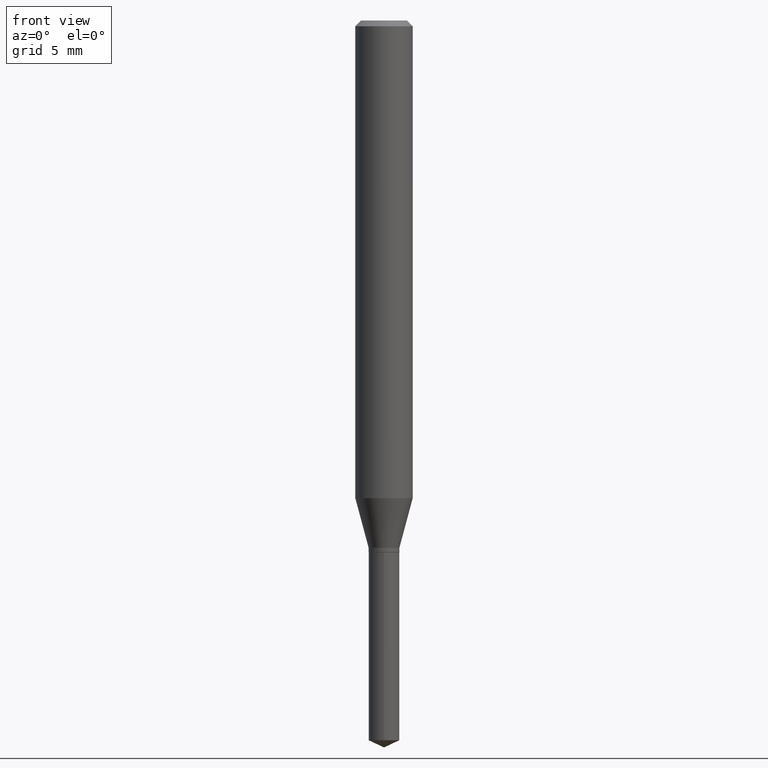
[diagram: clean part render]
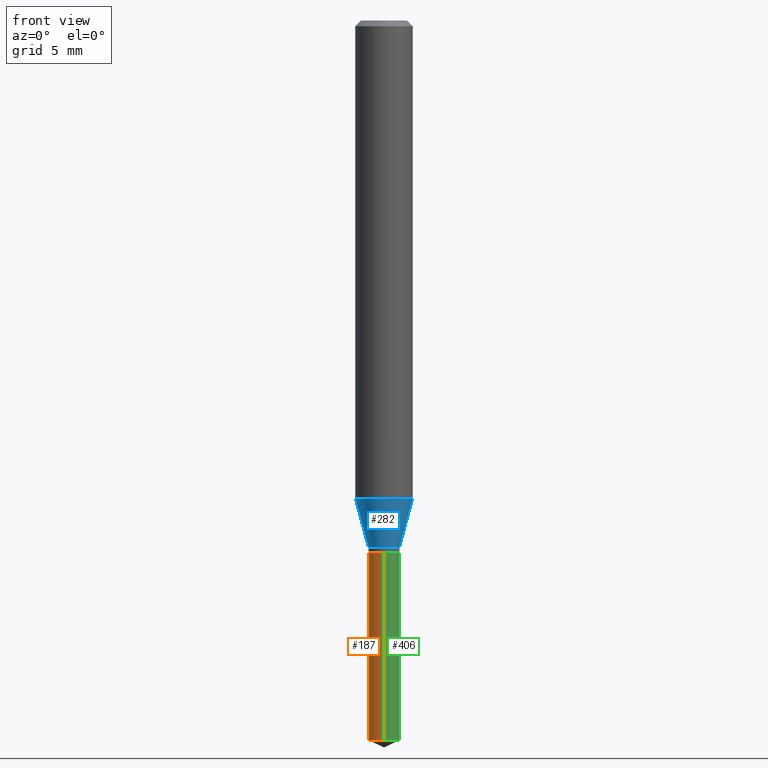
[diagram: same view with three faces highlighted in distinct colors, each labeled with its STEP entity id]
A machine part, front view with three faces highlighted in distinct colors.
Their STEP definitions:

[orange] entity #187 — the highlighted cylindrical surface (edge-blend (fillet) strip) has radius 0.8052 mm, axis along (-0, 0, 1).
#21 = LINE ( 'NONE', #163, #465 ) ;
#52 = DIRECTION ( 'NONE',  ( -6.982962677686265922E-15, -1.000000000000000000, 0.000000000000000000 ) ) ;
#66 = CARTESIAN_POINT ( 'NONE',  ( -2.213599168826184261E-16, -0.03170000000000517543, -1.481318047236486413 ) ) ;
#80 = DIRECTION ( 'NONE',  ( -2.445470214571802116E-29, 3.491479321953280158E-15, 1.000000000000000000 ) ) ;
#85 = CARTESIAN_POINT ( 'NONE',  ( 3.622517621345287760E-29, -5.171993538648362577E-15, -1.481318047236486413 ) ) ;
#120 = DIRECTION ( 'NONE',  ( -2.445470214571802396E-29, 3.491479321953280158E-15, 1.000000000000000000 ) ) ;
#160 = DIRECTION ( 'NONE',  ( -2.445470214571802116E-29, 3.491479321953280158E-15, 1.000000000000000000 ) ) ;
#163 = CARTESIAN_POINT ( 'NONE',  ( -2.213599168826278678E-16, -0.03170000000000382234, -1.094499999999999806 ) ) ;
#174 = DIRECTION ( 'NONE',  ( -6.982962677686265922E-15, -1.000000000000000000, 4.308908507356882401E-15 ) ) ;
#178 = CARTESIAN_POINT ( 'NONE',  ( -2.213599168826278678E-16, -0.03170000000000382234, -1.094499999999999806 ) ) ;
#187 = ADVANCED_FACE ( 'NONE', ( #353 ), #274, .T. ) ;
#188 = CIRCLE ( 'NONE', #277, 0.03169999999999999901 ) ;
#194 = LINE ( 'NONE', #429, #363 ) ;
#195 = EDGE_CURVE ( 'NONE', #400, #372, #264, .T. ) ;
#199 = ORIENTED_EDGE ( 'NONE', *, *, #261, .F. ) ;
#207 = AXIS2_PLACEMENT_3D ( 'NONE', #85, #160, #52 ) ;
#208 = CARTESIAN_POINT ( 'NONE',  ( 2.252420472359879902E-16, 0.03169999999999482954, -1.481318047236486413 ) ) ;
#217 = CARTESIAN_POINT ( 'NONE',  ( 2.676565608369631794E-29, -3.821426325363822773E-15, -1.094499999999999806 ) ) ;
#231 = VERTEX_POINT ( 'NONE', #390 ) ;
#261 = EDGE_CURVE ( 'NONE', #400, #231, #194, .T. ) ;
#264 = CIRCLE ( 'NONE', #207, 0.03169999999999999901 ) ;
#274 = CYLINDRICAL_SURFACE ( 'NONE', #426, 0.03169999999999999901 ) ;
#277 = AXIS2_PLACEMENT_3D ( 'NONE', #217, #442, #174 ) ;
#292 = ORIENTED_EDGE ( 'NONE', *, *, #327, .T. ) ;
#320 = DIRECTION ( 'NONE',  ( -2.445470214571802396E-29, 3.491479321953280158E-15, 1.000000000000000000 ) ) ;
#327 = EDGE_CURVE ( 'NONE', #372, #443, #21, .T. ) ;
#353 = FACE_OUTER_BOUND ( 'NONE', #414, .T. ) ;
#363 = VECTOR ( 'NONE', #120, 39.37007874015748143 ) ;
#372 = VERTEX_POINT ( 'NONE', #66 ) ;
#390 = CARTESIAN_POINT ( 'NONE',  ( 2.252420472359879902E-16, 0.03169999999999617568, -1.094500000000000028 ) ) ;
#395 = ORIENTED_EDGE ( 'NONE', *, *, #477, .F. ) ;
#400 = VERTEX_POINT ( 'NONE', #208 ) ;
#414 = EDGE_LOOP ( 'NONE', ( #199, #476, #292, #395 ) ) ;
#426 = AXIS2_PLACEMENT_3D ( 'NONE', #464, #80, #427 ) ;
#427 = DIRECTION ( 'NONE',  ( -6.982962677686265922E-15, -1.000000000000000000, 4.308908507356882401E-15 ) ) ;
#429 = CARTESIAN_POINT ( 'NONE',  ( 2.252420472359784746E-16, 0.03169999999999617568, -1.094500000000000028 ) ) ;
#442 = DIRECTION ( 'NONE',  ( -2.445470214571802116E-29, 3.491479321953280158E-15, 1.000000000000000000 ) ) ;
#443 = VERTEX_POINT ( 'NONE', #178 ) ;
#464 = CARTESIAN_POINT ( 'NONE',  ( 2.676565608369631794E-29, -3.821426325363822773E-15, -1.094499999999999806 ) ) ;
#465 = VECTOR ( 'NONE', #320, 39.37007874015748143 ) ;
#476 = ORIENTED_EDGE ( 'NONE', *, *, #195, .T. ) ;
#477 = EDGE_CURVE ( 'NONE', #231, #443, #188, .T. ) ;

[blue] entity #282 — the highlighted conical surface has half-angle 15 deg.
#31 = ORIENTED_EDGE ( 'NONE', *, *, #462, .F. ) ;
#34 = CONICAL_SURFACE ( 'NONE', #205, 0.03169999999999998513, 0.2617993877991499074 ) ;
#37 = ORIENTED_EDGE ( 'NONE', *, *, #362, .T. ) ;
#47 = LINE ( 'NONE', #117, #302 ) ;
#56 = DIRECTION ( 'NONE',  ( -2.445468806185136597E-29, 3.491481338843145583E-15, 1.000000000000000000 ) ) ;
#107 = DIRECTION ( 'NONE',  ( 0.2588190451025211836, 1.565188264969622559E-15, 0.9659258262890679791 ) ) ;
#113 = CARTESIAN_POINT ( 'NONE',  ( -0.03169999999999998513, -3.578726871433655542E-15, -1.084999999999999964 ) ) ;
#117 = CARTESIAN_POINT ( 'NONE',  ( -0.03169999999999998513, -3.563015205408861221E-15, -1.084999999999999964 ) ) ;
#123 = DIRECTION ( 'NONE',  ( -0.2588190451025211836, 5.211531920934547886E-15, 0.9659258262890679791 ) ) ;
#134 = ORIENTED_EDGE ( 'NONE', *, *, #232, .F. ) ;
#179 = VERTEX_POINT ( 'NONE', #113 ) ;
#185 = ORIENTED_EDGE ( 'NONE', *, *, #483, .T. ) ;
#190 = CARTESIAN_POINT ( 'NONE',  ( 2.653333654710873051E-29, -3.788257252644812628E-15, -1.084999999999999964 ) ) ;
#205 = AXIS2_PLACEMENT_3D ( 'NONE', #190, #267, #350 ) ;
#232 = EDGE_CURVE ( 'NONE', #179, #312, #47, .T. ) ;
#235 = FACE_OUTER_BOUND ( 'NONE', #416, .T. ) ;
#267 = DIRECTION ( 'NONE',  ( -2.445468806185136597E-29, 3.491481338843145583E-15, 1.000000000000000000 ) ) ;
#271 = VECTOR ( 'NONE', #107, 39.37007874015748854 ) ;
#282 = ADVANCED_FACE ( 'NONE', ( #235 ), #34, .T. ) ;
#294 = DIRECTION ( 'NONE',  ( -2.445468806185136597E-29, 3.491481338843145583E-15, 1.000000000000000000 ) ) ;
#302 = VECTOR ( 'NONE', #123, 39.37007874015748854 ) ;
#304 = AXIS2_PLACEMENT_3D ( 'NONE', #473, #56, #394 ) ;
#312 = VERTEX_POINT ( 'NONE', #313 ) ;
#313 = CARTESIAN_POINT ( 'NONE',  ( -0.05905000000000011628, -3.012300716909374642E-15, -0.9829284104129908384 ) ) ;
#316 = VERTEX_POINT ( 'NONE', #434 ) ;
#319 = CIRCLE ( 'NONE', #486, 0.05905000000000011628 ) ;
#350 = DIRECTION ( 'NONE',  ( 1.000000000000000000, -6.982962677686272233E-15, 0.000000000000000000 ) ) ;
#359 = VERTEX_POINT ( 'NONE', #367 ) ;
#362 = EDGE_CURVE ( 'NONE', #179, #359, #433, .T. ) ;
#367 = CARTESIAN_POINT ( 'NONE',  ( 0.03169999999999998513, -4.009617169527467169E-15, -1.084999999999999964 ) ) ;
#374 = LINE ( 'NONE', #403, #271 ) ;
#381 = DIRECTION ( 'NONE',  ( 1.000000000000000000, -6.982962677686266711E-15, 0.000000000000000000 ) ) ;
#394 = DIRECTION ( 'NONE',  ( 1.000000000000000000, -6.982962677686272233E-15, 0.000000000000000000 ) ) ;
#403 = CARTESIAN_POINT ( 'NONE',  ( 0.03169999999999998513, -4.009617169527467169E-15, -1.084999999999999964 ) ) ;
#416 = EDGE_LOOP ( 'NONE', ( #134, #37, #185, #31 ) ) ;
#433 = CIRCLE ( 'NONE', #304, 0.03169999999999998513 ) ;
#434 = CARTESIAN_POINT ( 'NONE',  ( 0.05905000000000011628, -3.844220148493089449E-15, -0.9829284104129908384 ) ) ;
#462 = EDGE_CURVE ( 'NONE', #312, #316, #319, .T. ) ;
#473 = CARTESIAN_POINT ( 'NONE',  ( 2.653333654710873051E-29, -3.788257252644812628E-15, -1.084999999999999964 ) ) ;
#483 = EDGE_CURVE ( 'NONE', #359, #316, #374, .T. ) ;
#484 = CARTESIAN_POINT ( 'NONE',  ( 2.403720766378110614E-29, -3.431876202375714135E-15, -0.9829284104129908384 ) ) ;
#486 = AXIS2_PLACEMENT_3D ( 'NONE', #484, #294, #381 ) ;

[green] entity #406 — the highlighted cylindrical surface (edge-blend (fillet) strip) has radius 0.8052 mm, axis along (-0, 0, 1).
#21 = LINE ( 'NONE', #163, #465 ) ;
#30 = DIRECTION ( 'NONE',  ( -6.982962677686265922E-15, -1.000000000000000000, 4.308908507356882401E-15 ) ) ;
#55 = EDGE_CURVE ( 'NONE', #443, #231, #348, .T. ) ;
#66 = CARTESIAN_POINT ( 'NONE',  ( -2.213599168826184261E-16, -0.03170000000000517543, -1.481318047236486413 ) ) ;
#84 = DIRECTION ( 'NONE',  ( -2.445470214571802116E-29, 3.491479321953280158E-15, 1.000000000000000000 ) ) ;
#92 = AXIS2_PLACEMENT_3D ( 'NONE', #424, #84, #229 ) ;
#100 = DIRECTION ( 'NONE',  ( -2.445470214571802116E-29, 3.491479321953280158E-15, 1.000000000000000000 ) ) ;
#103 = DIRECTION ( 'NONE',  ( -2.445470214571802116E-29, 3.491479321953280158E-15, 1.000000000000000000 ) ) ;
#114 = CIRCLE ( 'NONE', #92, 0.03169999999999999901 ) ;
#120 = DIRECTION ( 'NONE',  ( -2.445470214571802396E-29, 3.491479321953280158E-15, 1.000000000000000000 ) ) ;
#126 = AXIS2_PLACEMENT_3D ( 'NONE', #140, #103, #253 ) ;
#140 = CARTESIAN_POINT ( 'NONE',  ( 2.676565608369631794E-29, -3.821426325363822773E-15, -1.094499999999999806 ) ) ;
#144 = ORIENTED_EDGE ( 'NONE', *, *, #261, .T. ) ;
#163 = CARTESIAN_POINT ( 'NONE',  ( -2.213599168826278678E-16, -0.03170000000000382234, -1.094499999999999806 ) ) ;
#178 = CARTESIAN_POINT ( 'NONE',  ( -2.213599168826278678E-16, -0.03170000000000382234, -1.094499999999999806 ) ) ;
#194 = LINE ( 'NONE', #429, #363 ) ;
#198 = FACE_OUTER_BOUND ( 'NONE', #368, .T. ) ;
#208 = CARTESIAN_POINT ( 'NONE',  ( 2.252420472359879902E-16, 0.03169999999999482954, -1.481318047236486413 ) ) ;
#229 = DIRECTION ( 'NONE',  ( -6.982962677686265922E-15, -1.000000000000000000, 0.000000000000000000 ) ) ;
#231 = VERTEX_POINT ( 'NONE', #390 ) ;
#244 = CARTESIAN_POINT ( 'NONE',  ( 2.676565608369631794E-29, -3.821426325363822773E-15, -1.094499999999999806 ) ) ;
#252 = EDGE_CURVE ( 'NONE', #372, #400, #114, .T. ) ;
#253 = DIRECTION ( 'NONE',  ( -6.982962677686265922E-15, -1.000000000000000000, 4.308908507356882401E-15 ) ) ;
#261 = EDGE_CURVE ( 'NONE', #400, #231, #194, .T. ) ;
#288 = ORIENTED_EDGE ( 'NONE', *, *, #252, .T. ) ;
#320 = DIRECTION ( 'NONE',  ( -2.445470214571802396E-29, 3.491479321953280158E-15, 1.000000000000000000 ) ) ;
#327 = EDGE_CURVE ( 'NONE', #372, #443, #21, .T. ) ;
#330 = ORIENTED_EDGE ( 'NONE', *, *, #55, .F. ) ;
#344 = ORIENTED_EDGE ( 'NONE', *, *, #327, .F. ) ;
#348 = CIRCLE ( 'NONE', #126, 0.03169999999999999901 ) ;
#363 = VECTOR ( 'NONE', #120, 39.37007874015748143 ) ;
#368 = EDGE_LOOP ( 'NONE', ( #288, #144, #330, #344 ) ) ;
#372 = VERTEX_POINT ( 'NONE', #66 ) ;
#390 = CARTESIAN_POINT ( 'NONE',  ( 2.252420472359879902E-16, 0.03169999999999617568, -1.094500000000000028 ) ) ;
#399 = CYLINDRICAL_SURFACE ( 'NONE', #425, 0.03169999999999999901 ) ;
#400 = VERTEX_POINT ( 'NONE', #208 ) ;
#406 = ADVANCED_FACE ( 'NONE', ( #198 ), #399, .T. ) ;
#424 = CARTESIAN_POINT ( 'NONE',  ( 3.622517621345287760E-29, -5.171993538648362577E-15, -1.481318047236486413 ) ) ;
#425 = AXIS2_PLACEMENT_3D ( 'NONE', #244, #100, #30 ) ;
#429 = CARTESIAN_POINT ( 'NONE',  ( 2.252420472359784746E-16, 0.03169999999999617568, -1.094500000000000028 ) ) ;
#443 = VERTEX_POINT ( 'NONE', #178 ) ;
#465 = VECTOR ( 'NONE', #320, 39.37007874015748143 ) ;